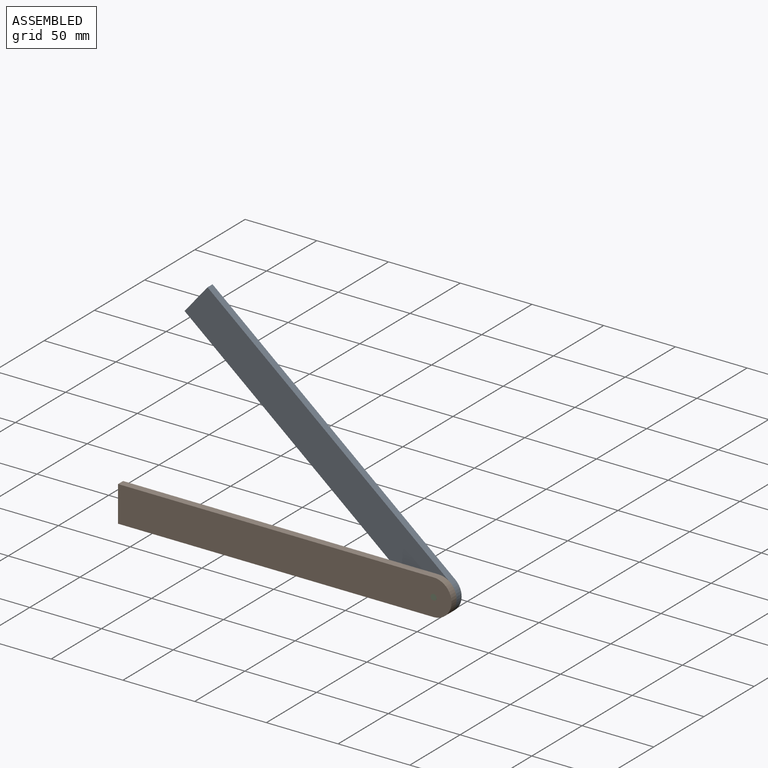
[diagram: assembled view]
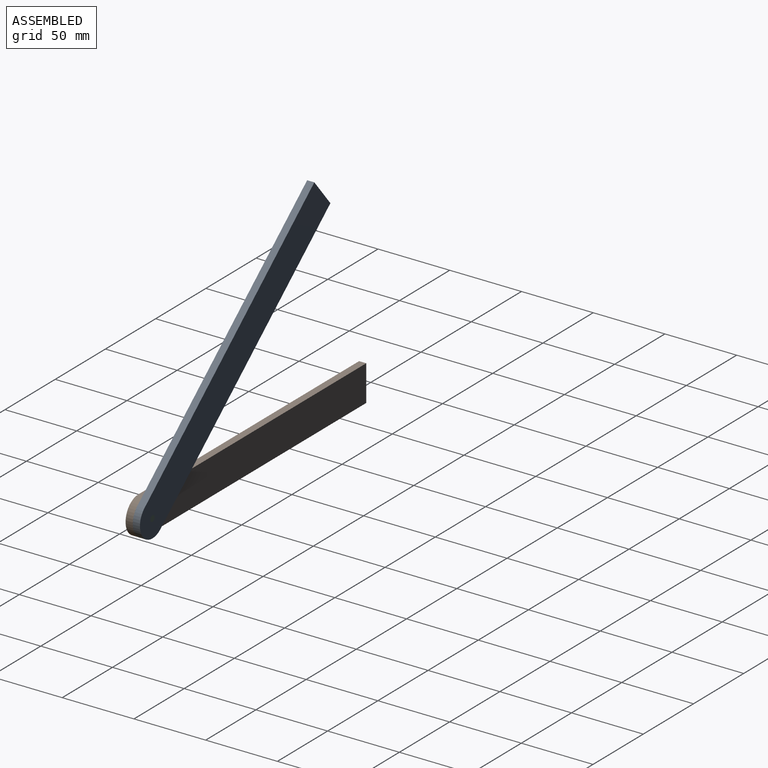
[diagram: assembled view, second angle]
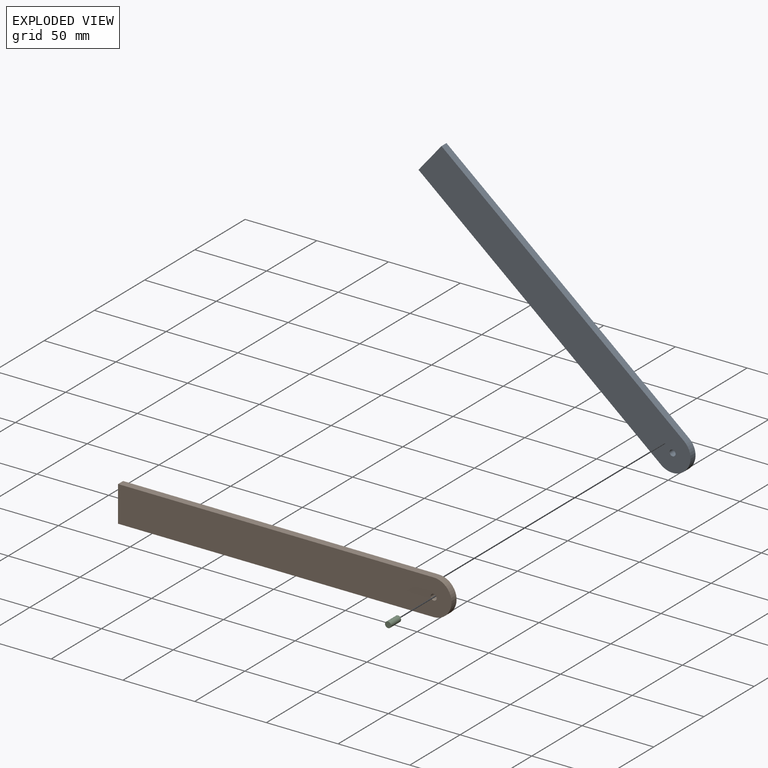
[diagram: exploded view]
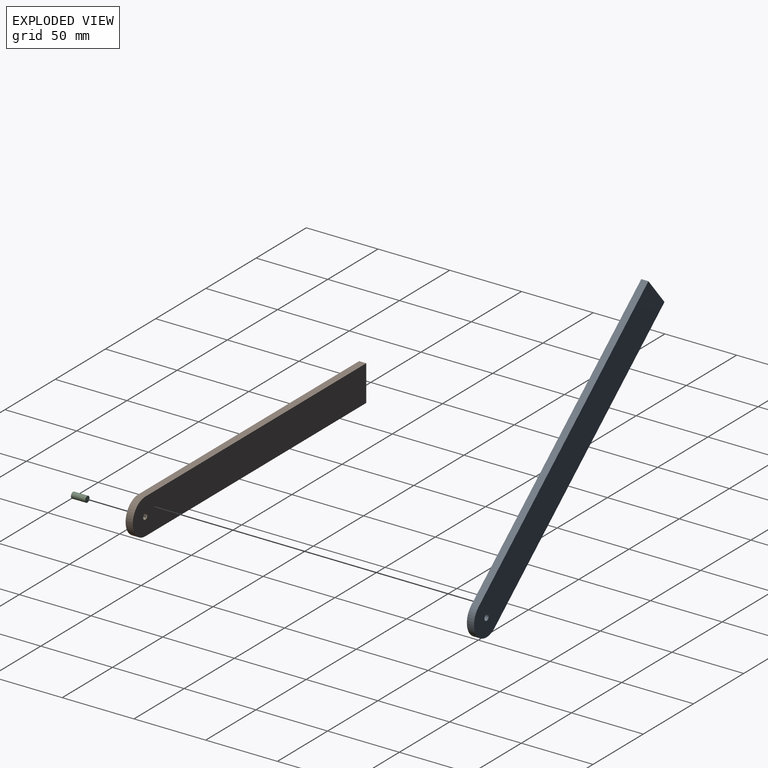
[diagram: exploded view, second angle]
ASSEMBLY  parts=3 mates=2
PART A: 7 faces, bbox 232.5x5x25 mm
  f0: plane 220x5mm, normal (0,0,1), area 1100mm2, adj f1,f4,f5,f6
  f1: plane 25x5mm, normal (-1,0,0), area 125mm2, adj f0,f2,f5,f6
  f2: plane 220x5mm, normal (0,0,-1), area 1100mm2, adj f1,f4,f5,f6
  f3: cylinder r=2.1mm len=5mm, axis (0,1,0), area 66mm2, adj f5,f6
  f4: cylinder r=12.5mm len=25mm, axis (0,1,0), area 196.3mm2, adj f0,f2,f5,f6
  f5: plane 232.5x25mm, normal (0,-1,0), area 5731.6mm2, adj f0,f1,f2,f3,f4
  f6: plane 232.5x25mm, normal (0,1,0), area 5731.6mm2, adj f0,f1,f2,f3,f4
PART B: 7 faces, bbox 232.5x5x25 mm
  f0: plane 220x5mm, normal (0,0,1), area 1100mm2, adj f1,f4,f5,f6
  f1: plane 25x5mm, normal (-1,0,0), area 125mm2, adj f0,f2,f5,f6
  f2: plane 220x5mm, normal (0,0,-1), area 1100mm2, adj f1,f4,f5,f6
  f3: cylinder r=2.1mm len=5mm, axis (0,1,0), area 66mm2, adj f5,f6
  f4: cylinder r=12.5mm len=25mm, axis (0,1,0), area 196.3mm2, adj f0,f2,f5,f6
  f5: plane 232.5x25mm, normal (0,-1,0), area 5731.6mm2, adj f0,f1,f2,f3,f4
  f6: plane 232.5x25mm, normal (0,1,0), area 5731.6mm2, adj f0,f1,f2,f3,f4
PART C: 3 faces, bbox 4.2x10x4.2 mm
  f0: cylinder r=2.1mm len=10mm, axis (0,1,0), area 131.9mm2, adj f1,f2
  f1: plane 4.2x4.2mm, normal (0,-1,0), area 13.9mm2, adj f0
  f2: plane 4.2x4.2mm, normal (0,1,0), area 13.9mm2, adj f0
PLACE A rot(axis=(0,1,0),39.8deg) t=(-101.04,24.08,-47.24)mm
PLACE B t=(-111.88,19.08,-97.89)mm fixed
PLACE C rot(axis=(0,1,0),30deg) t=(1.7,24.08,-101.41)mm
MATE revolute C.f0 <-> A.f3  axis (0,1,0) through (1.7,24.08,-101.41)mm
MATE revolute C.f0 <-> B.f3  axis (0,1,0) through (1.7,14.08,-101.41)mm
